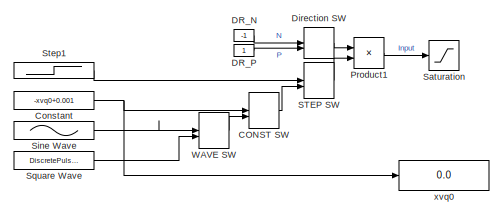
[diagram: root canvas - part 1/2, top left region]
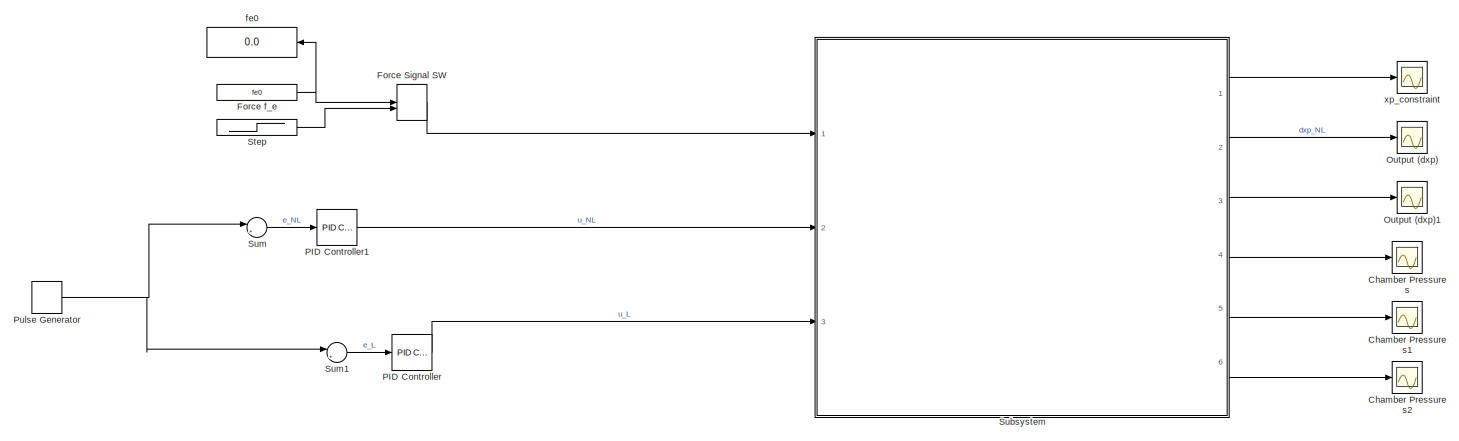
[diagram: root canvas - part 2/2, full width, bottom band]
MODEL slx_0a91ebf83be3
KIND model
CONFIG AbsTol = auto
CONFIG EnableMultiTasking = off
CONFIG FixedStep = auto
CONFIG InitFcn = param
CONFIG MaxStep = auto
CONFIG MinStep = auto
CONFIG RelTol = 1e-3
CONFIG SampleTimeConstraint = Unconstrained
CONFIG Solver = ode23s
CONFIG SolverName = ode23s
CONFIG StartTime = 0.0
CONFIG StopTime = 0.5
BLOCK [ManualSwitch] CONST SW
BLOCK [Scope] Chamber Pressures
  NumInputPorts = 1
  Ports = [1]
  ScopeSpecificationString = Simulink.scopes.TimeScopeBlockCfg('CurrentConfiguration', extmgr.ConfigurationSet(extmgr.Configuration('Core','General UI',true),extmgr.Configuration('Core','Source UI',true),extmgr.Configuration('Sources','WiredSimulink',true,'DataLoggingVariableName','ScopeData1'),extmgr.Configuration('Visuals','Time Domain',true,'SerializedDisplays',{struct('MinYLimReal','-1653314.0596','MaxYLimReal','14879826....<+1464ch>
BLOCK [Scope] Chamber Pressures1
  NumInputPorts = 1
  Ports = [1]
  ScopeSpecificationString = Simulink.scopes.TimeScopeBlockCfg('CurrentConfiguration', extmgr.ConfigurationSet(extmgr.Configuration('Core','General UI',true),extmgr.Configuration('Core','Source UI',true),extmgr.Configuration('Sources','WiredSimulink',true,'DataLoggingVariableName','ScopeData1'),extmgr.Configuration('Visuals','Time Domain',true,'SerializedDisplays',{struct('MinYLimReal','-1762704.09654','MaxYLimReal','15864336...<+1486ch>
BLOCK [Scope] Chamber Pressures2
  NumInputPorts = 1
  Ports = [1]
  ScopeSpecificationString = Simulink.scopes.TimeScopeBlockCfg('CurrentConfiguration', extmgr.ConfigurationSet(extmgr.Configuration('Core','General UI',true),extmgr.Configuration('Core','Source UI',true),extmgr.Configuration('Sources','WiredSimulink',true,'DataLoggingVariableName','ScopeData2'),extmgr.Configuration('Visuals','Time Domain',true,'SerializedDisplays',{struct('MinYLimReal','-18207933737.17088','MaxYLimReal','1580...<+1713ch>
BLOCK [Constant] Constant
  Value = -xvq0+0.001
BLOCK [Constant] DR_N
  Value = -1
BLOCK [Constant] DR_P 
BLOCK [ManualSwitch] Direction SW
BLOCK [ManualSwitch] Force Signal SW
BLOCK [Constant] Force f_e
  Value = fe0
BLOCK [Scope] Output (dxp)
  NumInputPorts = 1
  Ports = [1]
  ScopeSpecificationString = Simulink.scopes.TimeScopeBlockCfg('CurrentConfiguration', extmgr.ConfigurationSet(extmgr.Configuration('Core','General UI',true,'FigureColor',[0.501960784313725 0.501960784313725 0.501960784313725]),extmgr.Configuration('Core','Source UI',true),extmgr.Configuration('Sources','WiredSimulink',true,'DataLoggingVariableName','ScopeData5'),extmgr.Configuration('Visuals','Time Domain',true,'SerializedDi...<+1706ch>
BLOCK [Scope] Output (dxp)1
  NumInputPorts = 1
  Ports = [1]
  ScopeSpecificationString = Simulink.scopes.TimeScopeBlockCfg('CurrentConfiguration', extmgr.ConfigurationSet(extmgr.Configuration('Core','General UI',true,'FigureColor',[0.501960784313725 0.501960784313725 0.501960784313725]),extmgr.Configuration('Core','Source UI',true),extmgr.Configuration('Sources','WiredSimulink',true,'DataLoggingVariableName','ScopeData1'),extmgr.Configuration('Visuals','Time Domain',true,'SerializedDi...<+1902ch>
BLOCK [Reference] PID Controller  REF=simulink/Continuous/PID Controller
  Ports = [1, 1]
  SourceBlock = simulink/Continuous/PID Controller
  SourceType = PID 1dof
BLOCK [Reference] PID Controller1  REF=simulink/Continuous/PID Controller
  Ports = [1, 1]
  SourceBlock = simulink/Continuous/PID Controller
  SourceType = PID 1dof
BLOCK [Product] Product1
  InputSameDT = off
  OutDataTypeStr = Inherit: Inherit via internal rule
  Ports = [2, 1]
  RndMeth = Floor
  SaturateOnIntegerOverflow = off
BLOCK [DiscretePulseGenerator] Pulse Generator
  Amplitude = 0.3
  Period = 0.5
  Ports = [0, 1]
  PulseType = Time based
  PulseWidth = 5
BLOCK [ManualSwitch] STEP SW
  CurrentSetting = 0
BLOCK [Saturate] Saturation
  InputPortMap = u0
  LowerLimit = vn
  Ports = [1, 1]
  UpperLimit = vp
BLOCK [Sin] Sine Wave
  Amplitude = xvq0
  Frequency = 2*pi*1/2
  Phase = pi/2
  Ports = [0, 1]
  SampleTime = 0
BLOCK [DiscretePulseGenerator] Square Wave
  Amplitude = 0.0001
  Ports = [0, 1]
  PulseType = Time based
  PulseWidth = 50
BLOCK [Step] Step
  After = 0
  SampleTime = 0
  Time = 0.12
BLOCK [Step] Step1
  After = 0.005
  SampleTime = 0
  Time = 0
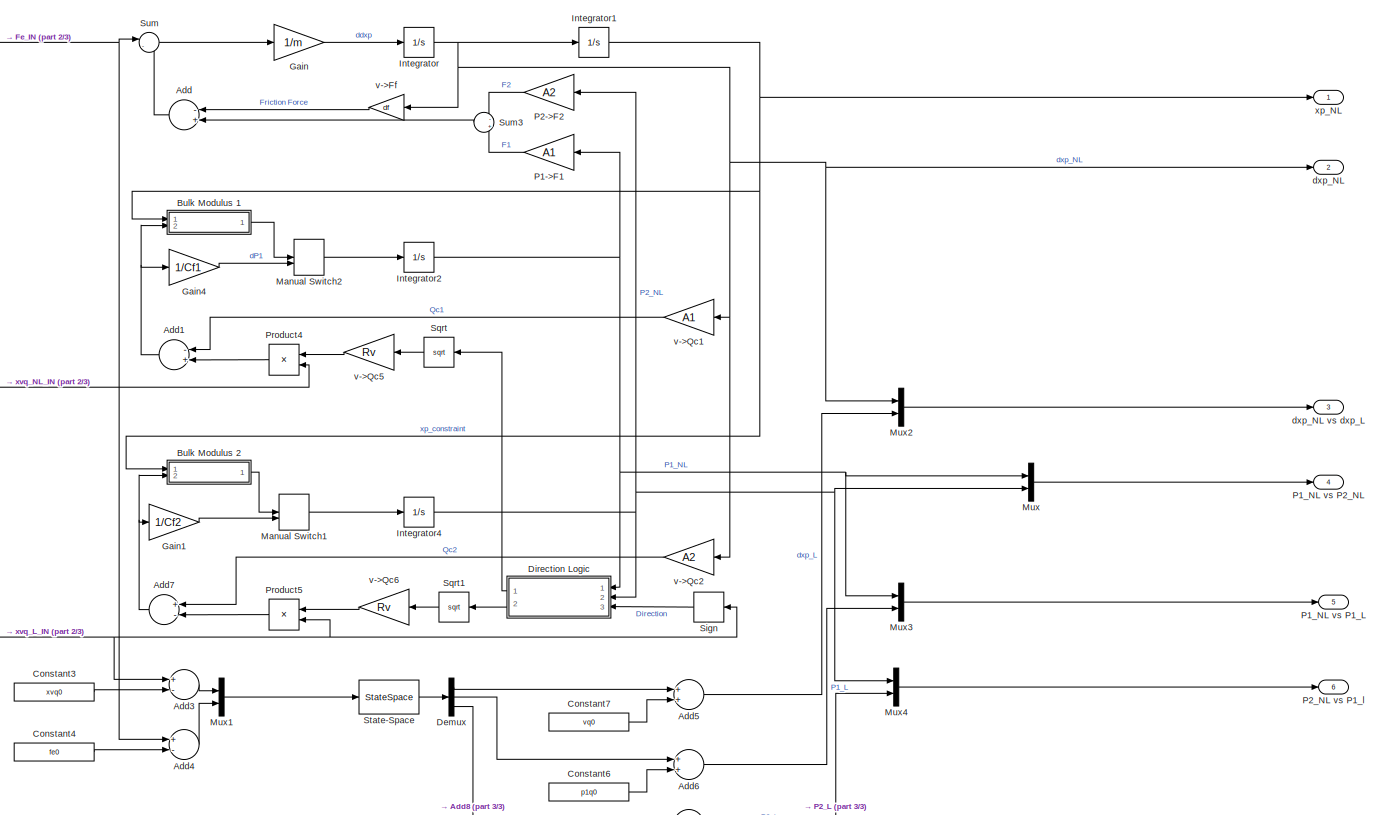
[diagram: Subsystem - part 1/3, most of the canvas]
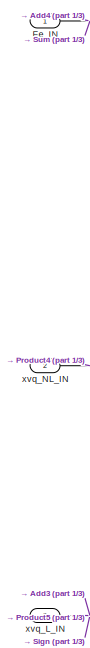
[diagram: Subsystem - part 2/3, middle left region]
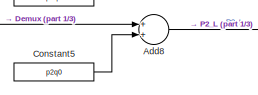
[diagram: Subsystem - part 3/3, bottom center region]
BLOCK [SubSystem] Subsystem
  Ports = [3, 6]
  RequestExecContextInheritance = off
  Variant = off
BLOCK [Sum] Subsystem/Add
  InputSameDT = off
  Inputs = -+
  OutDataTypeStr = Inherit: Inherit via internal rule
  Ports = [2, 1]
  SaturateOnIntegerOverflow = off
BLOCK [Sum] Subsystem/Add1
  InputSameDT = off
  Inputs = -+
  OutDataTypeStr = Inherit: Inherit via internal rule
  Ports = [2, 1]
  SaturateOnIntegerOverflow = off
BLOCK [Sum] Subsystem/Add3
  InputSameDT = off
  Inputs = +-
  OutDataTypeStr = Inherit: Inherit via internal rule
  Ports = [2, 1]
  SaturateOnIntegerOverflow = off
BLOCK [Sum] Subsystem/Add4
  InputSameDT = off
  Inputs = +-
  OutDataTypeStr = Inherit: Inherit via internal rule
  Ports = [2, 1]
  SaturateOnIntegerOverflow = off
BLOCK [Sum] Subsystem/Add5
  InputSameDT = off
  OutDataTypeStr = Inherit: Inherit via internal rule
  Ports = [2, 1]
  SaturateOnIntegerOverflow = off
BLOCK [Sum] Subsystem/Add6
  InputSameDT = off
  OutDataTypeStr = Inherit: Inherit via internal rule
  Ports = [2, 1]
  SaturateOnIntegerOverflow = off
BLOCK [Sum] Subsystem/Add7
  InputSameDT = off
  Inputs = +-
  OutDataTypeStr = Inherit: Inherit via internal rule
  Ports = [2, 1]
  SaturateOnIntegerOverflow = off
BLOCK [Sum] Subsystem/Add8
  InputSameDT = off
  OutDataTypeStr = Inherit: Inherit via internal rule
  Ports = [2, 1]
  SaturateOnIntegerOverflow = off
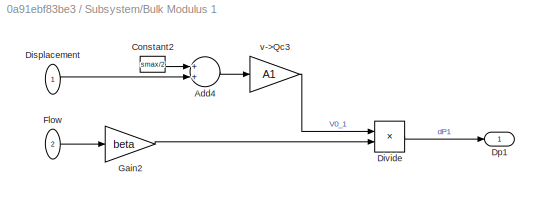
BLOCK [SubSystem] Subsystem/Bulk Modulus 1
  Commented = on
  Ports = [2, 1]
  RequestExecContextInheritance = off
  Variant = off
BLOCK [Sum] Subsystem/Bulk Modulus 1/Add4
  InputSameDT = off
  OutDataTypeStr = Inherit: Inherit via internal rule
  Ports = [2, 1]
  SaturateOnIntegerOverflow = off
BLOCK [Constant] Subsystem/Bulk Modulus 1/Constant2
  Value = smax/2
BLOCK [Inport] Subsystem/Bulk Modulus 1/Displacement
  IconDisplay = Port number
BLOCK [Product] Subsystem/Bulk Modulus 1/Divide
  InputSameDT = off
  Inputs = /*
  OutDataTypeStr = Inherit: Inherit via internal rule
  Ports = [2, 1]
  RndMeth = Floor
  SaturateOnIntegerOverflow = off
BLOCK [Outport] Subsystem/Bulk Modulus 1/Dp1
  IconDisplay = Port number
BLOCK [Inport] Subsystem/Bulk Modulus 1/Flow
  IconDisplay = Port number
  Port = 2
BLOCK [Gain] Subsystem/Bulk Modulus 1/Gain2
  Gain = beta
  OutDataTypeStr = Inherit: Inherit via internal rule
  ParamDataTypeStr = Inherit: Inherit via internal rule
  SaturateOnIntegerOverflow = off
BLOCK [Gain] Subsystem/Bulk Modulus 1/v->Qc3
  Gain = A1
  OutDataTypeStr = Inherit: Inherit via internal rule
  ParamDataTypeStr = Inherit: Inherit via internal rule
  SaturateOnIntegerOverflow = off
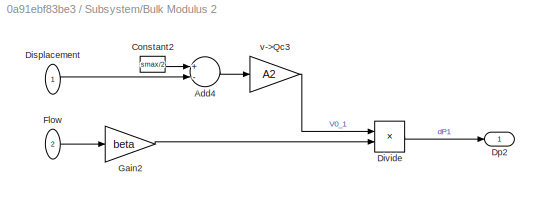
BLOCK [SubSystem] Subsystem/Bulk Modulus 2
  Commented = on
  Ports = [2, 1]
  RequestExecContextInheritance = off
  Variant = off
BLOCK [Sum] Subsystem/Bulk Modulus 2/Add4
  InputSameDT = off
  Inputs = +-
  OutDataTypeStr = Inherit: Inherit via internal rule
  Ports = [2, 1]
  SaturateOnIntegerOverflow = off
BLOCK [Constant] Subsystem/Bulk Modulus 2/Constant2
  Value = smax/2
BLOCK [Inport] Subsystem/Bulk Modulus 2/Displacement
  IconDisplay = Port number
BLOCK [Product] Subsystem/Bulk Modulus 2/Divide
  InputSameDT = off
  Inputs = /*
  OutDataTypeStr = Inherit: Inherit via internal rule
  Ports = [2, 1]
  RndMeth = Floor
  SaturateOnIntegerOverflow = off
BLOCK [Outport] Subsystem/Bulk Modulus 2/Dp2
  IconDisplay = Port number
BLOCK [Inport] Subsystem/Bulk Modulus 2/Flow
  IconDisplay = Port number
  Port = 2
BLOCK [Gain] Subsystem/Bulk Modulus 2/Gain2
  Gain = beta
  OutDataTypeStr = Inherit: Inherit via internal rule
  ParamDataTypeStr = Inherit: Inherit via internal rule
  SaturateOnIntegerOverflow = off
BLOCK [Gain] Subsystem/Bulk Modulus 2/v->Qc3
  Gain = A2
  OutDataTypeStr = Inherit: Inherit via internal rule
  ParamDataTypeStr = Inherit: Inherit via internal rule
  SaturateOnIntegerOverflow = off
BLOCK [Constant] Subsystem/Constant3
  Value = xvq0
BLOCK [Constant] Subsystem/Constant4
  Value = fe0
BLOCK [Constant] Subsystem/Constant5
  Value = p2q0
BLOCK [Constant] Subsystem/Constant6
  Value = p1q0
BLOCK [Constant] Subsystem/Constant7
  Value = vq0
BLOCK [Demux] Subsystem/Demux
  DisplayOption = bar
  Outputs = 3
  Ports = [1, 3]
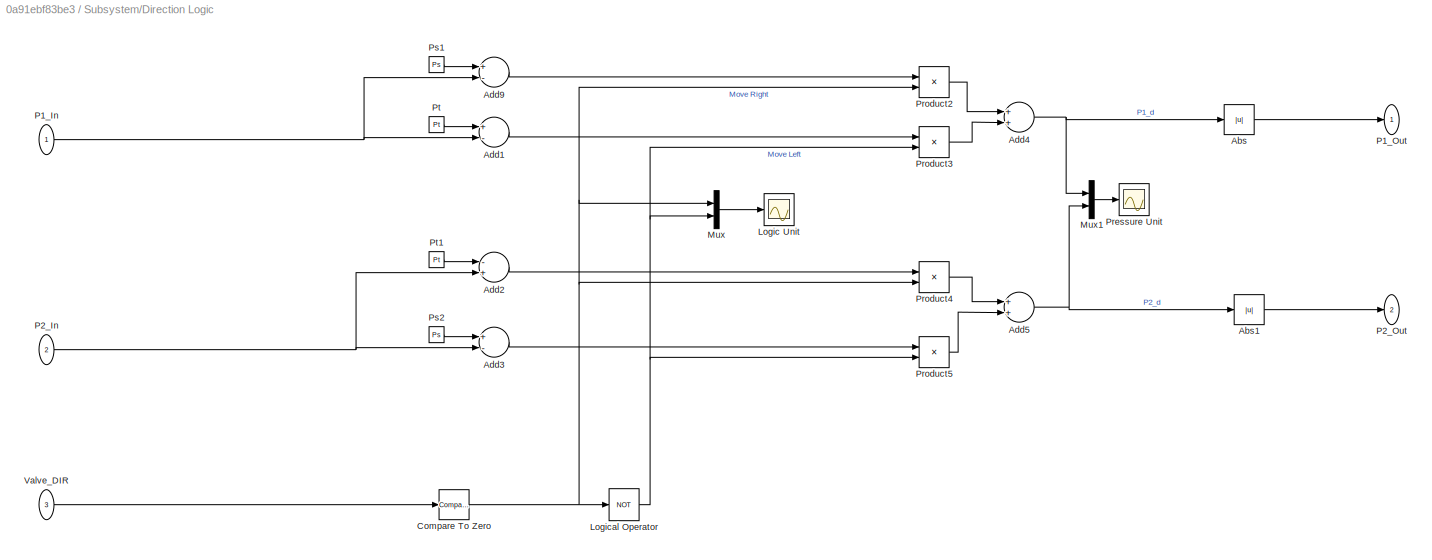
BLOCK [SubSystem] Subsystem/Direction Logic
  Ports = [3, 2]
  RequestExecContextInheritance = off
  Variant = off
BLOCK [Abs] Subsystem/Direction Logic/Abs
  SaturateOnIntegerOverflow = off
  ZeroCross = off
BLOCK [Abs] Subsystem/Direction Logic/Abs1
  SaturateOnIntegerOverflow = off
BLOCK [Sum] Subsystem/Direction Logic/Add1
  InputSameDT = off
  Inputs = +-
  OutDataTypeStr = Inherit: Inherit via internal rule
  Ports = [2, 1]
  SaturateOnIntegerOverflow = off
BLOCK [Sum] Subsystem/Direction Logic/Add2
  InputSameDT = off
  Inputs = -+
  OutDataTypeStr = Inherit: Inherit via internal rule
  Ports = [2, 1]
  SaturateOnIntegerOverflow = off
BLOCK [Sum] Subsystem/Direction Logic/Add3
  InputSameDT = off
  Inputs = +-
  OutDataTypeStr = Inherit: Inherit via internal rule
  Ports = [2, 1]
  SaturateOnIntegerOverflow = off
BLOCK [Sum] Subsystem/Direction Logic/Add4
  InputSameDT = off
  OutDataTypeStr = Inherit: Inherit via internal rule
  Ports = [2, 1]
  SaturateOnIntegerOverflow = off
BLOCK [Sum] Subsystem/Direction Logic/Add5
  InputSameDT = off
  OutDataTypeStr = Inherit: Inherit via internal rule
  Ports = [2, 1]
  SaturateOnIntegerOverflow = off
BLOCK [Sum] Subsystem/Direction Logic/Add9
  InputSameDT = off
  Inputs = +-
  OutDataTypeStr = Inherit: Inherit via internal rule
  Ports = [2, 1]
  SaturateOnIntegerOverflow = off
BLOCK [Reference] Subsystem/Direction Logic/Compare To Zero  REF=simulink/Logic and Bit
Operations/Compare
To Zero
  Ports = [1, 1]
  SourceBlock = simulink/Logic and Bit\nOperations/Compare\nTo Zero
  SourceType = Compare To Zero
BLOCK [Scope] Subsystem/Direction Logic/Logic Unit
  NumInputPorts = 1
  Ports = [1]
  ScopeSpecificationString = Simulink.scopes.TimeScopeBlockCfg('CurrentConfiguration', extmgr.ConfigurationSet(extmgr.Configuration('Core','General UI',true),extmgr.Configuration('Core','Source UI',true),extmgr.Configuration('Sources','WiredSimulink',true,'DataLoggingVariableName','ScopeData9'),extmgr.Configuration('Visuals','Time Domain',true,'SerializedDisplays',{struct('MinYLimReal','-0.125','MaxYLimReal','1.125','YLabelRe...<+1400ch>
BLOCK [Logic] Subsystem/Direction Logic/Logical Operator
  AllPortsSameDT = off
  Operator = NOT
  OutDataTypeStr = boolean
  Ports = [1, 1]
BLOCK [Mux] Subsystem/Direction Logic/Mux
  DisplayOption = bar
  Inputs = 2
  Ports = [2, 1]
BLOCK [Mux] Subsystem/Direction Logic/Mux1
  DisplayOption = bar
  Inputs = 2
  Ports = [2, 1]
BLOCK [Inport] Subsystem/Direction Logic/P1_In
  IconDisplay = Port number
BLOCK [Outport] Subsystem/Direction Logic/P1_Out
  IconDisplay = Port number
BLOCK [Inport] Subsystem/Direction Logic/P2_In
  IconDisplay = Port number
  Port = 2
BLOCK [Outport] Subsystem/Direction Logic/P2_Out
  IconDisplay = Port number
  Port = 2
BLOCK [Scope] Subsystem/Direction Logic/Pressure Unit
  NumInputPorts = 1
  Ports = [1]
  ScopeSpecificationString = Simulink.scopes.TimeScopeBlockCfg('CurrentConfiguration', extmgr.ConfigurationSet(extmgr.Configuration('Core','General UI',true),extmgr.Configuration('Core','Source UI',true),extmgr.Configuration('Sources','WiredSimulink',true,'DataLoggingVariableName','ScopeData2'),extmgr.Configuration('Visuals','Time Domain',true,'SerializedDisplays',{struct('MinYLimReal','-893141.30415','MaxYLimReal','8065087.7...<+1443ch>
BLOCK [Product] Subsystem/Direction Logic/Product2
  InputSameDT = off
  OutDataTypeStr = Inherit: Inherit via internal rule
  Ports = [2, 1]
  RndMeth = Floor
  SaturateOnIntegerOverflow = off
BLOCK [Product] Subsystem/Direction Logic/Product3
  InputSameDT = off
  OutDataTypeStr = Inherit: Inherit via internal rule
  Ports = [2, 1]
  RndMeth = Floor
  SaturateOnIntegerOverflow = off
BLOCK [Product] Subsystem/Direction Logic/Product4
  InputSameDT = off
  OutDataTypeStr = Inherit: Inherit via internal rule
  Ports = [2, 1]
  RndMeth = Floor
  SaturateOnIntegerOverflow = off
BLOCK [Product] Subsystem/Direction Logic/Product5
  InputSameDT = off
  OutDataTypeStr = Inherit: Inherit via internal rule
  Ports = [2, 1]
  RndMeth = Floor
  SaturateOnIntegerOverflow = off
BLOCK [Constant] Subsystem/Direction Logic/Ps1
  Value = Ps
BLOCK [Constant] Subsystem/Direction Logic/Ps2
  Value = Ps
BLOCK [Constant] Subsystem/Direction Logic/Pt
  Value = Pt
BLOCK [Constant] Subsystem/Direction Logic/Pt1
  Value = Pt
BLOCK [Inport] Subsystem/Direction Logic/Valve_DIR
  IconDisplay = Port number
  Port = 3
BLOCK [Inport] Subsystem/Fe_IN
  IconDisplay = Port number
BLOCK [Gain] Subsystem/Gain
  Gain = 1/m
  OutDataTypeStr = Inherit: Inherit via internal rule
  ParamDataTypeStr = Inherit: Inherit via internal rule
  SaturateOnIntegerOverflow = off
BLOCK [Gain] Subsystem/Gain1
  Gain = 1/Cf2
  OutDataTypeStr = Inherit: Inherit via internal rule
  ParamDataTypeStr = Inherit: Inherit via internal rule
  SaturateOnIntegerOverflow = off
BLOCK [Gain] Subsystem/Gain4
  Gain = 1/Cf1
  OutDataTypeStr = Inherit: Inherit via internal rule
  ParamDataTypeStr = Inherit: Inherit via internal rule
  SaturateOnIntegerOverflow = off
BLOCK [Integrator] Subsystem/Integrator
  Ports = [1, 1]
BLOCK [Integrator] Subsystem/Integrator1
  LimitOutput = on
  LowerSaturationLimit = -(smax/2-d)
  Ports = [1, 1]
  UpperSaturationLimit = (smax/2-d)
BLOCK [Integrator] Subsystem/Integrator2
  Ports = [1, 1]
BLOCK [Integrator] Subsystem/Integrator4
  Ports = [1, 1]
BLOCK [ManualSwitch] Subsystem/Manual Switch1
  CurrentSetting = 0
BLOCK [ManualSwitch] Subsystem/Manual Switch2
  CurrentSetting = 0
BLOCK [Mux] Subsystem/Mux
  Commented = on
  DisplayOption = bar
  Inputs = 2
  Ports = [2, 1]
BLOCK [Mux] Subsystem/Mux1
  DisplayOption = bar
  Inputs = 2
  Ports = [2, 1]
BLOCK [Mux] Subsystem/Mux2
  DisplayOption = bar
  Inputs = 2
  Ports = [2, 1]
BLOCK [Mux] Subsystem/Mux3
  Commented = on
  DisplayOption = bar
  Inputs = 2
  Ports = [2, 1]
BLOCK [Mux] Subsystem/Mux4
  Commented = on
  DisplayOption = bar
  Inputs = 2
  Ports = [2, 1]
BLOCK [Gain] Subsystem/P1->F1
  Gain = A1
  OutDataTypeStr = Inherit: Inherit via internal rule
  ParamDataTypeStr = Inherit: Inherit via internal rule
  SaturateOnIntegerOverflow = off
BLOCK [Outport] Subsystem/P1_NL vs P1_L
  IconDisplay = Port number
  Port = 5
BLOCK [Outport] Subsystem/P1_NL vs P2_NL
  IconDisplay = Port number
  Port = 4
BLOCK [Gain] Subsystem/P2->F2
  Gain = A2
  OutDataTypeStr = Inherit: Inherit via internal rule
  ParamDataTypeStr = Inherit: Inherit via internal rule
  SaturateOnIntegerOverflow = off
BLOCK [Outport] Subsystem/P2_NL vs P1_l
  IconDisplay = Port number
  Port = 6
BLOCK [Product] Subsystem/Product4
  InputSameDT = off
  OutDataTypeStr = Inherit: Inherit via internal rule
  Ports = [2, 1]
  RndMeth = Floor
  SaturateOnIntegerOverflow = off
BLOCK [Product] Subsystem/Product5
  InputSameDT = off
  OutDataTypeStr = Inherit: Inherit via internal rule
  Ports = [2, 1]
  RndMeth = Floor
  SaturateOnIntegerOverflow = off
BLOCK [Signum] Subsystem/Sign
BLOCK [Sqrt] Subsystem/Sqrt
BLOCK [Sqrt] Subsystem/Sqrt1
BLOCK [StateSpace] Subsystem/State-Space
  A = A
  B = B
  C = C
  D = D0
  Ports = [1, 1]
  X0 = 0
BLOCK [Sum] Subsystem/Sum
  IconShape = round
  InputSameDT = off
  Inputs = |-+
  OutDataTypeStr = Inherit: Inherit via internal rule
  Ports = [2, 1]
  SaturateOnIntegerOverflow = off
BLOCK [Sum] Subsystem/Sum3
  IconShape = round
  InputSameDT = off
  Inputs = -+
  OutDataTypeStr = Inherit: Inherit via internal rule
  Ports = [2, 1]
  SaturateOnIntegerOverflow = off
BLOCK [Outport] Subsystem/dxp_NL
  IconDisplay = Port number
  Port = 2
BLOCK [Outport] Subsystem/dxp_NL vs dxp_L
  IconDisplay = Port number
  Port = 3
BLOCK [Gain] Subsystem/v->Ff
  Gain = df
  OutDataTypeStr = Inherit: Inherit via internal rule
  ParamDataTypeStr = Inherit: Inherit via internal rule
  SaturateOnIntegerOverflow = off
BLOCK [Gain] Subsystem/v->Qc1
  Gain = A1
  OutDataTypeStr = Inherit: Inherit via internal rule
  ParamDataTypeStr = Inherit: Inherit via internal rule
  SaturateOnIntegerOverflow = off
BLOCK [Gain] Subsystem/v->Qc2
  Gain = A2
  OutDataTypeStr = Inherit: Inherit via internal rule
  ParamDataTypeStr = Inherit: Inherit via internal rule
  SaturateOnIntegerOverflow = off
BLOCK [Gain] Subsystem/v->Qc5
  Gain = Rv
  OutDataTypeStr = Inherit: Inherit via internal rule
  ParamDataTypeStr = Inherit: Inherit via internal rule
  SaturateOnIntegerOverflow = off
BLOCK [Gain] Subsystem/v->Qc6
  Gain = Rv
  OutDataTypeStr = Inherit: Inherit via internal rule
  ParamDataTypeStr = Inherit: Inherit via internal rule
  SaturateOnIntegerOverflow = off
BLOCK [Outport] Subsystem/xp_NL
  IconDisplay = Port number
BLOCK [Inport] Subsystem/xvq_L_IN
  IconDisplay = Port number
  Port = 3
BLOCK [Inport] Subsystem/xvq_NL_IN
  IconDisplay = Port number
  Port = 2
BLOCK [Sum] Sum
  IconShape = round
  InputSameDT = off
  Inputs = |+-
  OutDataTypeStr = Inherit: Inherit via internal rule
  Ports = [2, 1]
  SaturateOnIntegerOverflow = off
BLOCK [Sum] Sum1
  IconShape = round
  InputSameDT = off
  Inputs = |+-
  OutDataTypeStr = Inherit: Inherit via internal rule
  Ports = [2, 1]
  SaturateOnIntegerOverflow = off
BLOCK [ManualSwitch] WAVE SW
BLOCK [Display] fe0
  Decimation = 1
  Ports = [1]
BLOCK [Scope] xp_constraint
  NumInputPorts = 1
  Ports = [1]
  ScopeSpecificationString = Simulink.scopes.TimeScopeBlockCfg('CurrentConfiguration', extmgr.ConfigurationSet(extmgr.Configuration('Core','General UI',true),extmgr.Configuration('Core','Source UI',true),extmgr.Configuration('Sources','WiredSimulink',true,'DataLoggingVariableName','ScopeData2'),extmgr.Configuration('Visuals','Time Domain',true,'SerializedDisplays',{struct('MinYLimReal','-0.02665','MaxYLimReal','0.23982','YLab...<+1408ch>
BLOCK [Display] xvq0
  Decimation = 1
  Ports = [1]
LINE CONST SW:1 -> STEP SW:2
NET Constant:1 -> CONST SW:1, xvq0:1
LINE DR_N:1 -> Direction SW:1
LINE DR_P :1 -> Direction SW:2
LINE Direction SW:1 -> Product1:1
LINE Force Signal SW:1 -> Subsystem:1
NET Force f_e:1 -> Force Signal SW:1, fe0:1
LINE PID Controller1:1 -> Subsystem:2
LINE PID Controller:1 -> Subsystem:3
LINE Product1:1 -> Saturation:1
NET Pulse Generator:1 -> Sum1:1, Sum:1
LINE STEP SW:1 -> Product1:2
LINE Sine Wave:1 -> WAVE SW:1
LINE Square Wave:1 -> WAVE SW:2
LINE Step1:1 -> STEP SW:1
LINE Step:1 -> Force Signal SW:2
NET Subsystem/Add1:1 -> Subsystem/Bulk Modulus 1:2, Subsystem/Gain4:1
LINE Subsystem/Add3:1 -> Subsystem/Mux1:1
LINE Subsystem/Add4:1 -> Subsystem/Mux1:2
LINE Subsystem/Add5:1 -> Subsystem/Mux2:2
LINE Subsystem/Add6:1 -> Subsystem/Mux3:2
NET Subsystem/Add7:1 -> Subsystem/Bulk Modulus 2:2, Subsystem/Gain1:1
LINE Subsystem/Add8:1 -> Subsystem/Mux4:2
LINE Subsystem/Add:1 -> Subsystem/Sum:2
LINE Subsystem/Bulk Modulus 1/Add4:1 -> Subsystem/Bulk Modulus 1/v->Qc3:1
LINE Subsystem/Bulk Modulus 1/Constant2:1 -> Subsystem/Bulk Modulus 1/Add4:1
LINE Subsystem/Bulk Modulus 1/Displacement:1 -> Subsystem/Bulk Modulus 1/Add4:2
LINE Subsystem/Bulk Modulus 1/Divide:1 -> Subsystem/Bulk Modulus 1/Dp1:1
LINE Subsystem/Bulk Modulus 1/Flow:1 -> Subsystem/Bulk Modulus 1/Gain2:1
LINE Subsystem/Bulk Modulus 1/Gain2:1 -> Subsystem/Bulk Modulus 1/Divide:2
LINE Subsystem/Bulk Modulus 1/v->Qc3:1 -> Subsystem/Bulk Modulus 1/Divide:1
LINE Subsystem/Bulk Modulus 1:1 -> Subsystem/Manual Switch2:1
LINE Subsystem/Bulk Modulus 2/Add4:1 -> Subsystem/Bulk Modulus 2/v->Qc3:1
LINE Subsystem/Bulk Modulus 2/Constant2:1 -> Subsystem/Bulk Modulus 2/Add4:1
LINE Subsystem/Bulk Modulus 2/Displacement:1 -> Subsystem/Bulk Modulus 2/Add4:2
LINE Subsystem/Bulk Modulus 2/Divide:1 -> Subsystem/Bulk Modulus 2/Dp2:1
LINE Subsystem/Bulk Modulus 2/Flow:1 -> Subsystem/Bulk Modulus 2/Gain2:1
LINE Subsystem/Bulk Modulus 2/Gain2:1 -> Subsystem/Bulk Modulus 2/Divide:2
LINE Subsystem/Bulk Modulus 2/v->Qc3:1 -> Subsystem/Bulk Modulus 2/Divide:1
LINE Subsystem/Bulk Modulus 2:1 -> Subsystem/Manual Switch1:1
LINE Subsystem/Constant3:1 -> Subsystem/Add3:2
LINE Subsystem/Constant4:1 -> Subsystem/Add4:2
LINE Subsystem/Constant5:1 -> Subsystem/Add8:2
LINE Subsystem/Constant6:1 -> Subsystem/Add6:2
LINE Subsystem/Constant7:1 -> Subsystem/Add5:2
LINE Subsystem/Demux:1 -> Subsystem/Add5:1
LINE Subsystem/Demux:2 -> Subsystem/Add6:1
LINE Subsystem/Demux:3 -> Subsystem/Add8:1
LINE Subsystem/Direction Logic/Abs1:1 -> Subsystem/Direction Logic/P2_Out:1
LINE Subsystem/Direction Logic/Abs:1 -> Subsystem/Direction Logic/P1_Out:1
LINE Subsystem/Direction Logic/Add1:1 -> Subsystem/Direction Logic/Product3:1
LINE Subsystem/Direction Logic/Add2:1 -> Subsystem/Direction Logic/Product4:1
LINE Subsystem/Direction Logic/Add3:1 -> Subsystem/Direction Logic/Product5:1
NET Subsystem/Direction Logic/Add4:1 -> Subsystem/Direction Logic/Abs:1, Subsystem/Direction Logic/Mux1:1
NET Subsystem/Direction Logic/Add5:1 -> Subsystem/Direction Logic/Abs1:1, Subsystem/Direction Logic/Mux1:2
LINE Subsystem/Direction Logic/Add9:1 -> Subsystem/Direction Logic/Product2:1
NET Subsystem/Direction Logic/Compare To Zero:1 -> Subsystem/Direction Logic/Logical Operator:1, Subsystem/Direction Logic/Mux:1, Subsystem/Direction Logic/Product2:2, Subsystem/Direction Logic/Product4:2
NET Subsystem/Direction Logic/Logical Operator:1 -> Subsystem/Direction Logic/Mux:2, Subsystem/Direction Logic/Product3:2, Subsystem/Direction Logic/Product5:2
LINE Subsystem/Direction Logic/Mux1:1 -> Subsystem/Direction Logic/Pressure Unit:1
LINE Subsystem/Direction Logic/Mux:1 -> Subsystem/Direction Logic/Logic Unit:1
NET Subsystem/Direction Logic/P1_In:1 -> Subsystem/Direction Logic/Add1:2, Subsystem/Direction Logic/Add9:2
NET Subsystem/Direction Logic/P2_In:1 -> Subsystem/Direction Logic/Add2:2, Subsystem/Direction Logic/Add3:2
LINE Subsystem/Direction Logic/Product2:1 -> Subsystem/Direction Logic/Add4:1
LINE Subsystem/Direction Logic/Product3:1 -> Subsystem/Direction Logic/Add4:2
LINE Subsystem/Direction Logic/Product4:1 -> Subsystem/Direction Logic/Add5:1
LINE Subsystem/Direction Logic/Product5:1 -> Subsystem/Direction Logic/Add5:2
LINE Subsystem/Direction Logic/Ps1:1 -> Subsystem/Direction Logic/Add9:1
LINE Subsystem/Direction Logic/Ps2:1 -> Subsystem/Direction Logic/Add3:1
LINE Subsystem/Direction Logic/Pt1:1 -> Subsystem/Direction Logic/Add2:1
LINE Subsystem/Direction Logic/Pt:1 -> Subsystem/Direction Logic/Add1:1
LINE Subsystem/Direction Logic/Valve_DIR:1 -> Subsystem/Direction Logic/Compare To Zero:1
LINE Subsystem/Direction Logic:1 -> Subsystem/Sqrt:1
LINE Subsystem/Direction Logic:2 -> Subsystem/Sqrt1:1
NET Subsystem/Fe_IN:1 -> Subsystem/Add4:1, Subsystem/Sum:1
LINE Subsystem/Gain1:1 -> Subsystem/Manual Switch1:2
LINE Subsystem/Gain4:1 -> Subsystem/Manual Switch2:2
LINE Subsystem/Gain:1 -> Subsystem/Integrator:1
NET Subsystem/Integrator1:1 -> Subsystem/Bulk Modulus 1:1, Subsystem/Bulk Modulus 2:1, Subsystem/xp_NL:1
NET Subsystem/Integrator2:1 -> Subsystem/Direction Logic:1, Subsystem/Mux3:1, Subsystem/Mux:1, Subsystem/P1->F1:1
NET Subsystem/Integrator4:1 -> Subsystem/Direction Logic:2, Subsystem/Mux4:1, Subsystem/Mux:2, Subsystem/P2->F2:1
NET Subsystem/Integrator:1 -> Subsystem/Integrator1:1, Subsystem/Mux2:1, Subsystem/dxp_NL:1, Subsystem/v->Ff:1, Subsystem/v->Qc1:1, Subsystem/v->Qc2:1
LINE Subsystem/Manual Switch1:1 -> Subsystem/Integrator4:1
LINE Subsystem/Manual Switch2:1 -> Subsystem/Integrator2:1
LINE Subsystem/Mux1:1 -> Subsystem/State-Space:1
LINE Subsystem/Mux2:1 -> Subsystem/dxp_NL vs dxp_L:1
LINE Subsystem/Mux3:1 -> Subsystem/P1_NL vs P1_L:1
LINE Subsystem/Mux4:1 -> Subsystem/P2_NL vs P1_l:1
LINE Subsystem/Mux:1 -> Subsystem/P1_NL vs P2_NL:1
LINE Subsystem/P1->F1:1 -> Subsystem/Sum3:2
LINE Subsystem/P2->F2:1 -> Subsystem/Sum3:1
LINE Subsystem/Product4:1 -> Subsystem/Add1:2
LINE Subsystem/Product5:1 -> Subsystem/Add7:2
LINE Subsystem/Sign:1 -> Subsystem/Direction Logic:3
LINE Subsystem/Sqrt1:1 -> Subsystem/v->Qc6:1
LINE Subsystem/Sqrt:1 -> Subsystem/v->Qc5:1
LINE Subsystem/State-Space:1 -> Subsystem/Demux:1
LINE Subsystem/Sum3:1 -> Subsystem/Add:2
LINE Subsystem/Sum:1 -> Subsystem/Gain:1
LINE Subsystem/v->Ff:1 -> Subsystem/Add:1
LINE Subsystem/v->Qc1:1 -> Subsystem/Add1:1
LINE Subsystem/v->Qc2:1 -> Subsystem/Add7:1
LINE Subsystem/v->Qc5:1 -> Subsystem/Product4:1
LINE Subsystem/v->Qc6:1 -> Subsystem/Product5:1
NET Subsystem/xvq_L_IN:1 -> Subsystem/Add3:1, Subsystem/Product5:2, Subsystem/Sign:1
LINE Subsystem/xvq_NL_IN:1 -> Subsystem/Product4:2
LINE Subsystem:1 -> xp_constraint:1
LINE Subsystem:2 -> Output (dxp):1
LINE Subsystem:3 -> Output (dxp)1:1
LINE Subsystem:4 -> Chamber Pressures:1
LINE Subsystem:5 -> Chamber Pressures1:1
LINE Subsystem:6 -> Chamber Pressures2:1
LINE Sum1:1 -> PID Controller:1
LINE Sum:1 -> PID Controller1:1
LINE WAVE SW:1 -> CONST SW:2
note: NET lines group one-source signal fan-out (src -> all destinations, sorted); 1:1 wires keep LINE
